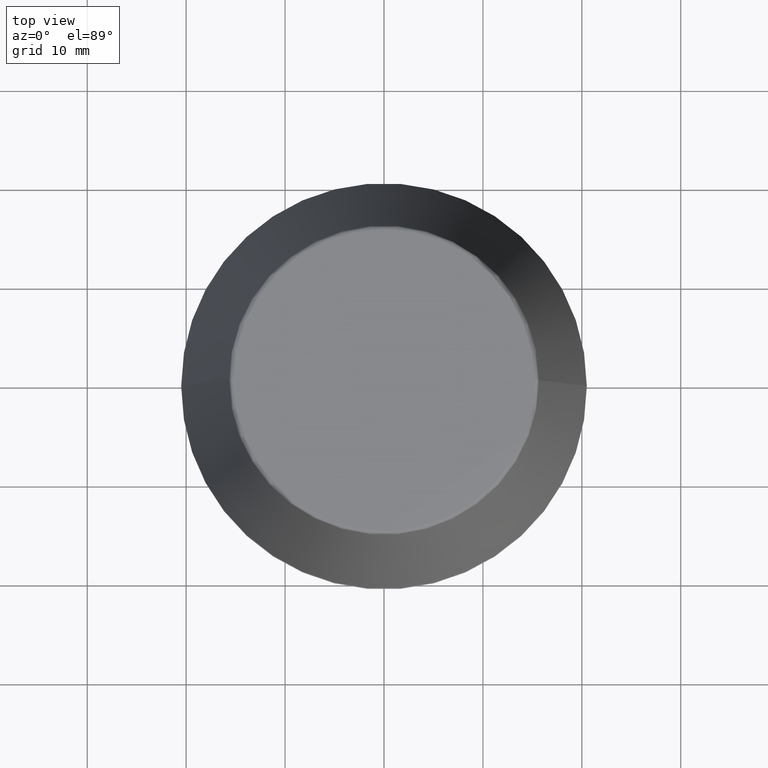
[diagram: clean part render]
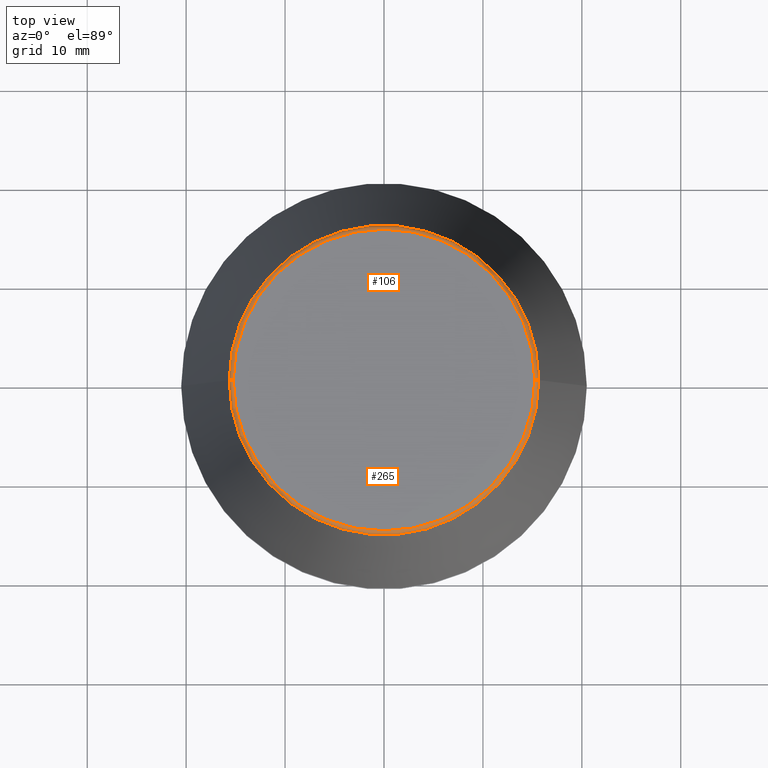
[diagram: same view with one multi-face feature highlighted, each face labeled with its STEP entity id]
A machine part, top view. The highlighted faces form ONE feature: a constant-radius fillet chain: 2 tangent blend faces with common blend radius 0.4 mm. The faces share edges in the B-rep.
Their STEP definitions:
[1] entity #106 (Torus):
#4 = EDGE_CURVE ( 'NONE', #152, #173, #128, .T. ) ;
#9 = VERTEX_POINT ( 'NONE', #54 ) ;
#18 = DIRECTION ( 'NONE',  ( 1.000000000000000000, 0.0000000000000000000, 0.0000000000000000000 ) ) ;
#27 = AXIS2_PLACEMENT_3D ( 'NONE', #384, #36, #303 ) ;
#29 = EDGE_CURVE ( 'NONE', #213, #173, #31, .T. ) ;
#31 = CIRCLE ( 'NONE', #59, 15.24773554530077600 ) ;
#32 = EDGE_CURVE ( 'NONE', #9, #213, #187, .T. ) ;
#36 = DIRECTION ( 'NONE',  ( 1.224646799147353200E-016, 1.000000000000000000, 0.0000000000000000000 ) ) ;
#39 = AXIS2_PLACEMENT_3D ( 'NONE', #377, #170, #18 ) ;
#43 = CARTESIAN_POINT ( 'NONE',  ( -15.64384277279740400, 0.0000000000000000000, 45.65566924038402900 ) ) ;
#54 = CARTESIAN_POINT ( 'NONE',  ( 15.64384277279740400, 2.213191991290356800E-015, 45.65566924038402900 ) ) ;
#59 = AXIS2_PLACEMENT_3D ( 'NONE', #304, #111, #338 ) ;
#75 = CARTESIAN_POINT ( 'NONE',  ( 15.24773554530077600, 0.0000000000000000000, 45.60000000000000100 ) ) ;
#79 = CIRCLE ( 'NONE', #39, 15.64384277279740400 ) ;
#88 = ORIENTED_EDGE ( 'NONE', *, *, #4, .T. ) ;
#95 = EDGE_CURVE ( 'NONE', #9, #152, #79, .T. ) ;
#98 = DIRECTION ( 'NONE',  ( 0.0000000000000000000, 0.0000000000000000000, -1.000000000000000000 ) ) ;
#103 = AXIS2_PLACEMENT_3D ( 'NONE', #308, #205, #122 ) ;
#106 = ADVANCED_FACE ( 'NONE', ( #234 ), #364, .T. ) ;
#111 = DIRECTION ( 'NONE',  ( -0.0000000000000000000, -0.0000000000000000000, 1.000000000000000000 ) ) ;
#122 = DIRECTION ( 'NONE',  ( 1.000000000000000000, 0.0000000000000000000, 0.0000000000000000000 ) ) ;
#128 = CIRCLE ( 'NONE', #27, 0.3999999999999975800 ) ;
#152 = VERTEX_POINT ( 'NONE', #43 ) ;
#159 = ORIENTED_EDGE ( 'NONE', *, *, #95, .T. ) ;
#170 = DIRECTION ( 'NONE',  ( -0.0000000000000000000, -0.0000000000000000000, 1.000000000000000000 ) ) ;
#173 = VERTEX_POINT ( 'NONE', #244 ) ;
#187 = CIRCLE ( 'NONE', #344, 0.3999999999999975800 ) ;
#205 = DIRECTION ( 'NONE',  ( -0.0000000000000000000, -0.0000000000000000000, 1.000000000000000000 ) ) ;
#210 = ORIENTED_EDGE ( 'NONE', *, *, #29, .F. ) ;
#213 = VERTEX_POINT ( 'NONE', #339 ) ;
#234 = FACE_OUTER_BOUND ( 'NONE', #328, .T. ) ;
#244 = CARTESIAN_POINT ( 'NONE',  ( -15.24773554530077600, 1.891563625393435400E-015, 46.00000000000000000 ) ) ;
#289 = DIRECTION ( 'NONE',  ( 0.0000000000000000000, -1.000000000000000000, 0.0000000000000000000 ) ) ;
#302 = ORIENTED_EDGE ( 'NONE', *, *, #32, .F. ) ;
#303 = DIRECTION ( 'NONE',  ( -1.000000000000000000, 1.224646799147353900E-016, 0.0000000000000000000 ) ) ;
#304 = CARTESIAN_POINT ( 'NONE',  ( 0.0000000000000000000, 0.0000000000000000000, 46.00000000000000000 ) ) ;
#308 = CARTESIAN_POINT ( 'NONE',  ( 0.0000000000000000000, 0.0000000000000000000, 45.60000000000000100 ) ) ;
#328 = EDGE_LOOP ( 'NONE', ( #159, #88, #210, #302 ) ) ;
#338 = DIRECTION ( 'NONE',  ( 1.000000000000000000, 0.0000000000000000000, 0.0000000000000000000 ) ) ;
#339 = CARTESIAN_POINT ( 'NONE',  ( 15.24773554530077600, 0.0000000000000000000, 46.00000000000000000 ) ) ;
#344 = AXIS2_PLACEMENT_3D ( 'NONE', #75, #289, #98 ) ;
#364 = TOROIDAL_SURFACE ( 'NONE', #103, 15.24773554530077600, 0.3999999999999991900 ) ;
#377 = CARTESIAN_POINT ( 'NONE',  ( 0.0000000000000000000, 0.0000000000000000000, 45.65566924038402900 ) ) ;
#384 = CARTESIAN_POINT ( 'NONE',  ( -15.24773554530077600, 1.867309052979791600E-015, 45.60000000000000100 ) ) ;
[2] entity #265 (Torus):
#1 = FACE_OUTER_BOUND ( 'NONE', #226, .T. ) ;
#4 = EDGE_CURVE ( 'NONE', #152, #173, #128, .T. ) ;
#9 = VERTEX_POINT ( 'NONE', #54 ) ;
#10 = AXIS2_PLACEMENT_3D ( 'NONE', #347, #335, #136 ) ;
#23 = CARTESIAN_POINT ( 'NONE',  ( 0.0000000000000000000, 0.0000000000000000000, 45.65566924038402900 ) ) ;
#27 = AXIS2_PLACEMENT_3D ( 'NONE', #384, #36, #303 ) ;
#30 = AXIS2_PLACEMENT_3D ( 'NONE', #74, #288, #97 ) ;
#32 = EDGE_CURVE ( 'NONE', #9, #213, #187, .T. ) ;
#36 = DIRECTION ( 'NONE',  ( 1.224646799147353200E-016, 1.000000000000000000, 0.0000000000000000000 ) ) ;
#41 = EDGE_CURVE ( 'NONE', #152, #9, #264, .T. ) ;
#43 = CARTESIAN_POINT ( 'NONE',  ( -15.64384277279740400, 0.0000000000000000000, 45.65566924038402900 ) ) ;
#54 = CARTESIAN_POINT ( 'NONE',  ( 15.64384277279740400, 2.213191991290356800E-015, 45.65566924038402900 ) ) ;
#64 = TOROIDAL_SURFACE ( 'NONE', #30, 15.24773554530077600, 0.3999999999999991900 ) ;
#74 = CARTESIAN_POINT ( 'NONE',  ( 0.0000000000000000000, 0.0000000000000000000, 45.60000000000000100 ) ) ;
#75 = CARTESIAN_POINT ( 'NONE',  ( 15.24773554530077600, 0.0000000000000000000, 45.60000000000000100 ) ) ;
#97 = DIRECTION ( 'NONE',  ( 1.000000000000000000, 0.0000000000000000000, 0.0000000000000000000 ) ) ;
#98 = DIRECTION ( 'NONE',  ( 0.0000000000000000000, 0.0000000000000000000, -1.000000000000000000 ) ) ;
#104 = ORIENTED_EDGE ( 'NONE', *, *, #176, .F. ) ;
#128 = CIRCLE ( 'NONE', #27, 0.3999999999999975800 ) ;
#134 = AXIS2_PLACEMENT_3D ( 'NONE', #23, #138, #179 ) ;
#136 = DIRECTION ( 'NONE',  ( 1.000000000000000000, 0.0000000000000000000, 0.0000000000000000000 ) ) ;
#138 = DIRECTION ( 'NONE',  ( -0.0000000000000000000, -0.0000000000000000000, 1.000000000000000000 ) ) ;
#152 = VERTEX_POINT ( 'NONE', #43 ) ;
#173 = VERTEX_POINT ( 'NONE', #244 ) ;
#176 = EDGE_CURVE ( 'NONE', #173, #213, #209, .T. ) ;
#179 = DIRECTION ( 'NONE',  ( 1.000000000000000000, 0.0000000000000000000, 0.0000000000000000000 ) ) ;
#187 = CIRCLE ( 'NONE', #344, 0.3999999999999975800 ) ;
#209 = CIRCLE ( 'NONE', #10, 15.24773554530077600 ) ;
#213 = VERTEX_POINT ( 'NONE', #339 ) ;
#226 = EDGE_LOOP ( 'NONE', ( #269, #277, #236, #104 ) ) ;
#236 = ORIENTED_EDGE ( 'NONE', *, *, #32, .T. ) ;
#244 = CARTESIAN_POINT ( 'NONE',  ( -15.24773554530077600, 1.891563625393435400E-015, 46.00000000000000000 ) ) ;
#264 = CIRCLE ( 'NONE', #134, 15.64384277279740400 ) ;
#265 = ADVANCED_FACE ( 'NONE', ( #1 ), #64, .T. ) ;
#269 = ORIENTED_EDGE ( 'NONE', *, *, #4, .F. ) ;
#277 = ORIENTED_EDGE ( 'NONE', *, *, #41, .T. ) ;
#288 = DIRECTION ( 'NONE',  ( -0.0000000000000000000, -0.0000000000000000000, 1.000000000000000000 ) ) ;
#289 = DIRECTION ( 'NONE',  ( 0.0000000000000000000, -1.000000000000000000, 0.0000000000000000000 ) ) ;
#303 = DIRECTION ( 'NONE',  ( -1.000000000000000000, 1.224646799147353900E-016, 0.0000000000000000000 ) ) ;
#335 = DIRECTION ( 'NONE',  ( -0.0000000000000000000, -0.0000000000000000000, 1.000000000000000000 ) ) ;
#339 = CARTESIAN_POINT ( 'NONE',  ( 15.24773554530077600, 0.0000000000000000000, 46.00000000000000000 ) ) ;
#344 = AXIS2_PLACEMENT_3D ( 'NONE', #75, #289, #98 ) ;
#347 = CARTESIAN_POINT ( 'NONE',  ( 0.0000000000000000000, 0.0000000000000000000, 46.00000000000000000 ) ) ;
#384 = CARTESIAN_POINT ( 'NONE',  ( -15.24773554530077600, 1.867309052979791600E-015, 45.60000000000000100 ) ) ;